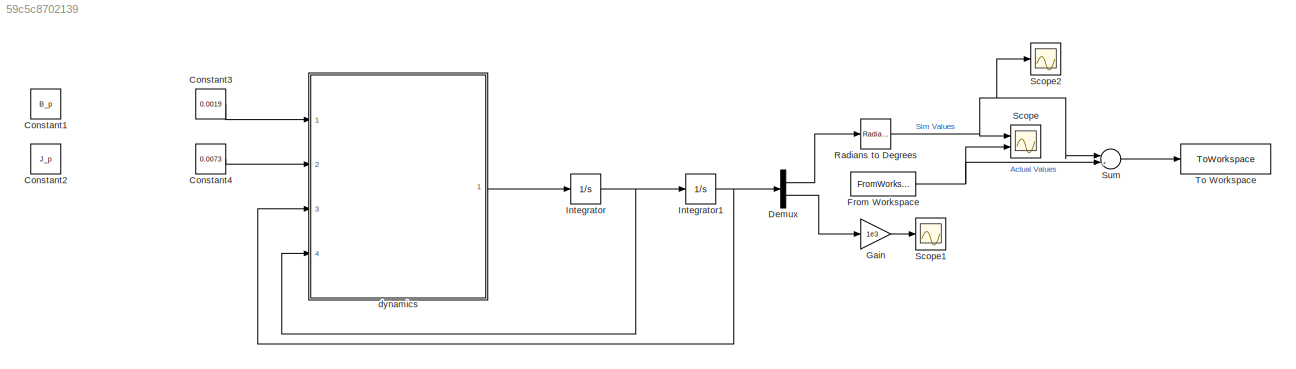
MODEL slx_59c5c8702139
KIND model
CONFIG AbsTol = auto
CONFIG EnableMultiTasking = off
CONFIG FixedStep = 0.002
CONFIG MaxStep = auto
CONFIG MinStep = auto
CONFIG RelTol = 1e-3
CONFIG SampleTimeConstraint = Unconstrained
CONFIG SolverName = ode4
CONFIG StartTime = 0.0
CONFIG StopTime = 100
BLOCK [Constant] Constant1
  Commented = on
  Value = B_p
BLOCK [Constant] Constant2
  Commented = on
  Value = J_p
BLOCK [Constant] Constant3
  Value = 0.0019
BLOCK [Constant] Constant4
  Value = 0.0073
BLOCK [Demux] Demux
  Outputs = 2
  Ports = [1, 2]
BLOCK [FromWorkspace] From Workspace
  SampleTime = 0.002
  VariableName = th1_data
BLOCK [Gain] Gain
  Gain = 1e3
BLOCK [Integrator] Integrator
  InitialCondition = [0 0]
  Ports = [1, 1]
BLOCK [Integrator] Integrator1
  InitialCondition = [10*pi/180 0]
  Ports = [1, 1]
BLOCK [Reference] Radians to Degrees  REF=simulink_extras/Transformations/Radians
to Degrees
  Ports = [1, 1]
  SourceBlock = simulink_extras/Transformations/Radians\nto Degrees
  SourceProductBaseCode = SL
  SourceType = RadiansToDegrees
BLOCK [Scope] Scope
  Floating = off
  NumInputPorts = 2
  Ports = [2]
  ScopeSpecificationString = Simulink.scopes.TimeScopeBlockCfg('CurrentConfiguration', extmgr.ConfigurationSet(extmgr.Configuration('Core','General UI',true),extmgr.Configuration('Core','Source UI',true),extmgr.Configuration('Sources','WiredSimulink',true,'SampleTime','0.002'),extmgr.Configuration('Visuals','Time Domain',true,'SerializedDisplays',{struct('MinYLimReal','-12.28515','MaxYLimReal','12.47613','YLabelReal','','MinY...<+1425ch>
BLOCK [Scope] Scope1
  Floating = off
  NumInputPorts = 1
  Ports = [1]
  ScopeSpecificationString = Simulink.scopes.TimeScopeBlockCfg('CurrentConfiguration', extmgr.ConfigurationSet(extmgr.Configuration('Core','General UI',true),extmgr.Configuration('Core','Source UI',true),extmgr.Configuration('Sources','WiredSimulink',true,'DataLoggingVariableName','ScopeData1'),extmgr.Configuration('Visuals','Time Domain',true,'SerializedDisplays',{struct('MinYLimReal','-1.00000','MaxYLimReal','1.00000','YLab...<+1363ch>
BLOCK [Scope] Scope2
  Floating = off
  NumInputPorts = 1
  Ports = [1]
  ScopeSpecificationString = Simulink.scopes.TimeScopeBlockCfg('CurrentConfiguration', extmgr.ConfigurationSet(extmgr.Configuration('Core','General UI',true),extmgr.Configuration('Core','Source UI',true),extmgr.Configuration('Sources','WiredSimulink',true,'DataLoggingVariableName','th1_SIM','DataLogging',true,'DataLoggingSaveFormat','Array'),extmgr.Configuration('Visuals','Time Domain',true,'SerializedDisplays',{struct('MinYL...<+1423ch>
BLOCK [Sum] Sum
  Inputs = |+-
  Ports = [2, 1]
BLOCK [ToWorkspace] To Workspace
  FixptAsFi = on
  MaxDataPoints = inf
  Ports = [1]
  SampleTime = 0.002
  SaveFormat = Timeseries
  VariableName = resnorm
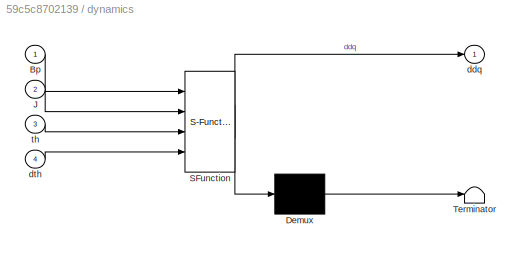
BLOCK [SubSystem] dynamics
  ErrorFcn = Stateflow.Translate.translate
  PermitHierarchicalResolution = ExplicitOnly
  Ports = [4, 1]
  RequestExecContextInheritance = off
  SFBlockType = MATLAB Function
  TreatAsAtomicUnit = on
BLOCK [Demux] dynamics/ Demux 
  Outputs = 1
  Ports = [1, 1]
BLOCK [S-Function] dynamics/ SFunction 
  EnableBusSupport = on
  FunctionName = sf_sfun
  PortCounts = [4 2]
  Ports = [4, 2]
  SFcnIsStateOwnerBlock = off
  SFunctionDeploymentMode = off
  Tag = Stateflow S-Function 2
BLOCK [Terminator] dynamics/ Terminator 
BLOCK [Inport] dynamics/Bp
BLOCK [Inport] dynamics/J
  Port = 2
BLOCK [Outport] dynamics/ddq
BLOCK [Inport] dynamics/dth
  Port = 4
BLOCK [Inport] dynamics/th
  Port = 3
LINE Constant3:1 -> dynamics:1
LINE Constant4:1 -> dynamics:2
LINE Demux:1 -> Radians to Degrees:1
LINE Demux:2 -> Gain:1
NET From Workspace:1 -> Scope:2, Sum:2
LINE Gain:1 -> Scope1:1
NET Integrator1:1 -> Demux:1, dynamics:3
NET Integrator:1 -> Integrator1:1, dynamics:4
NET Radians to Degrees:1 -> Scope2:1, Scope:1, Sum:1
LINE Sum:1 -> To Workspace:1
LINE dynamics:1 -> Integrator:1
note: NET lines group one-source signal fan-out (src -> all destinations, sorted); 1:1 wires keep LINE
CHART dynamics states=1 transitions=1
  STATE_LABEL 'eML_blk_kernel()'
  STATE_LABEL 'SCRIPT:\nfunction ddq = dynamics(Bp,J,th,dth)\n%#codegen\n\n%    This function was generated by the Symbolic Math Toolbox version 8.7.\n%    25-Oct-2022 13:27:13\n\ng = 9.81;\nm = 0.230;\nl = 0.3302;\n\nsgn = 0;\nCp = 0;\n\nddq = -(Bp.*dth+Cp.*sgn+g.*l.*m.*sin(th))./(J+l.^2.*m);\n'
CHART  states=0 transitions=0
